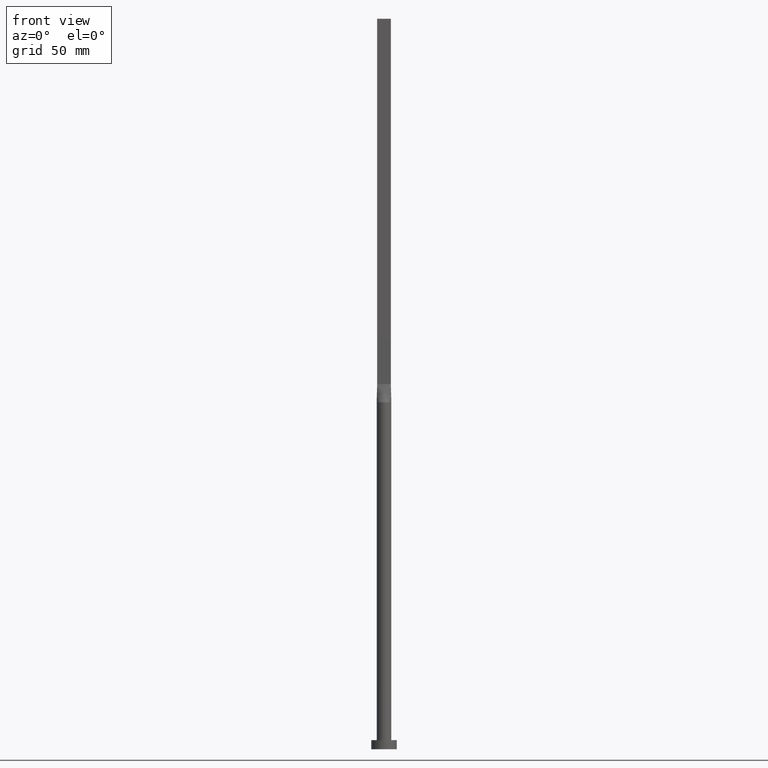
[diagram: clean part render]
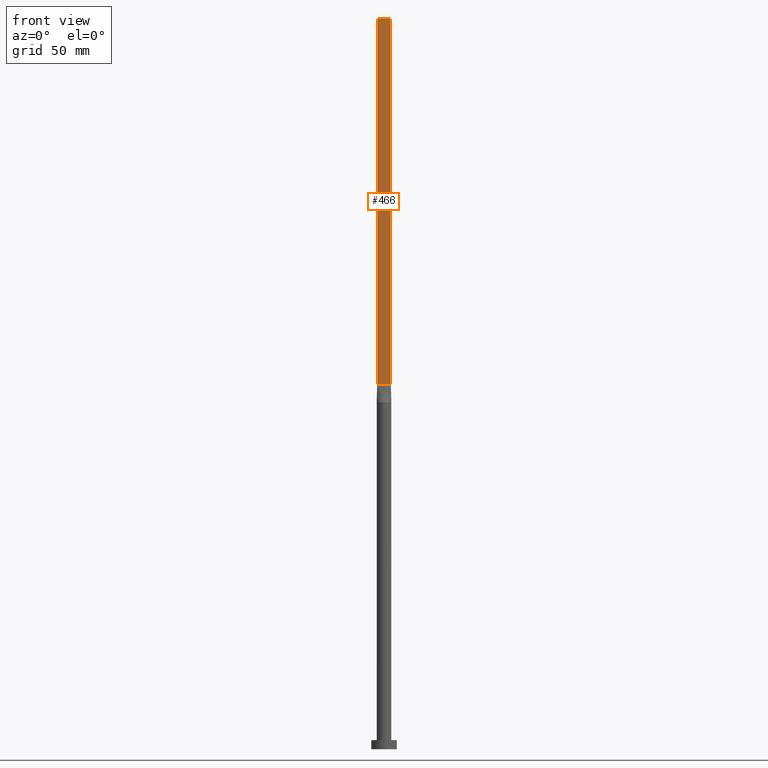
[diagram: same view with one face highlighted and labeled with its STEP entity id]
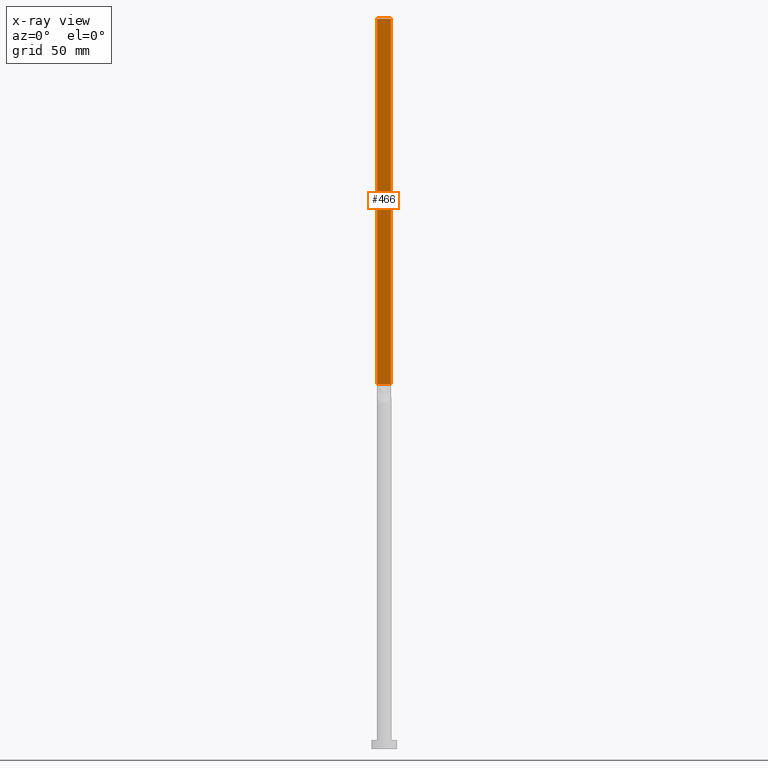
[diagram: x-ray of the same camera — body ghosted, the highlighted face saturated]
A machine part, front view. The second image highlights one B-rep face of the part: STEP entity #466.
The next image is the same camera in x-ray: the body ghosted, the highlighted face saturated — about 0% of this face is hidden behind the body in this view.
In plain terms, the highlighted planar face has unit normal (0, 1, -0).
Its self-contained STEP definition (entity closure, byte-faithful):
#2 = ORIENTED_EDGE ( 'NONE', *, *, #90, .F. ) ;
#74 = LINE ( 'NONE', #517, #511 ) ;
#85 = CARTESIAN_POINT ( 'NONE',  ( -3.750000000000000000, -0.9999999999999991118, 200.0000000000000000 ) ) ;
#90 = EDGE_CURVE ( 'NONE', #425, #197, #155, .T. ) ;
#114 = DIRECTION ( 'NONE',  ( -0.000000000000000000, -0.000000000000000000, -1.000000000000000000 ) ) ;
#117 = VECTOR ( 'NONE', #387, 1000.000000000000000 ) ;
#132 = EDGE_CURVE ( 'NONE', #425, #147, #74, .T. ) ;
#142 = CARTESIAN_POINT ( 'NONE',  ( 3.750000000000000000, -0.9999999999999997780, 400.0000000000000000 ) ) ;
#144 = EDGE_CURVE ( 'NONE', #147, #548, #568, .T. ) ;
#147 = VERTEX_POINT ( 'NONE', #85 ) ;
#155 = LINE ( 'NONE', #512, #371 ) ;
#180 = PLANE ( 'NONE',  #533 ) ;
#188 = ORIENTED_EDGE ( 'NONE', *, *, #144, .T. ) ;
#192 = FACE_OUTER_BOUND ( 'NONE', #241, .T. ) ;
#197 = VERTEX_POINT ( 'NONE', #489 ) ;
#205 = CARTESIAN_POINT ( 'NONE',  ( -3.750000000000000000, -0.9999999999999991118, 200.0000000000000000 ) ) ;
#229 = VECTOR ( 'NONE', #335, 1000.000000000000000 ) ;
#241 = EDGE_LOOP ( 'NONE', ( #188, #556, #2, #446 ) ) ;
#335 = DIRECTION ( 'NONE',  ( -0.000000000000000000, -0.000000000000000000, -1.000000000000000000 ) ) ;
#345 = CARTESIAN_POINT ( 'NONE',  ( 3.750000000000000000, -0.9999999999999997780, 200.0000000000000000 ) ) ;
#368 = CARTESIAN_POINT ( 'NONE',  ( -3.750000000000000000, -0.9999999999999991118, 400.0000000000000000 ) ) ;
#371 = VECTOR ( 'NONE', #470, 1000.000000000000000 ) ;
#373 = LINE ( 'NONE', #142, #229 ) ;
#387 = DIRECTION ( 'NONE',  ( 1.000000000000000000, -8.673617379884035472E-17, 0.000000000000000000 ) ) ;
#405 = DIRECTION ( 'NONE',  ( -1.000000000000000000, 8.673617379884035472E-17, 0.000000000000000000 ) ) ;
#420 = CARTESIAN_POINT ( 'NONE',  ( -3.750000000000000000, -0.9999999999999991118, 400.0000000000000000 ) ) ;
#425 = VERTEX_POINT ( 'NONE', #420 ) ;
#437 = EDGE_CURVE ( 'NONE', #197, #548, #373, .T. ) ;
#446 = ORIENTED_EDGE ( 'NONE', *, *, #132, .T. ) ;
#466 = ADVANCED_FACE ( 'NONE', ( #192 ), #180, .F. ) ;
#470 = DIRECTION ( 'NONE',  ( 1.000000000000000000, -8.673617379884035472E-17, 0.000000000000000000 ) ) ;
#489 = CARTESIAN_POINT ( 'NONE',  ( 3.750000000000000000, -0.9999999999999997780, 400.0000000000000000 ) ) ;
#494 = DIRECTION ( 'NONE',  ( 8.673617379884035472E-17, 1.000000000000000000, -0.000000000000000000 ) ) ;
#511 = VECTOR ( 'NONE', #114, 1000.000000000000000 ) ;
#512 = CARTESIAN_POINT ( 'NONE',  ( -3.750000000000000000, -0.9999999999999991118, 400.0000000000000000 ) ) ;
#517 = CARTESIAN_POINT ( 'NONE',  ( -3.750000000000000000, -0.9999999999999991118, 400.0000000000000000 ) ) ;
#533 = AXIS2_PLACEMENT_3D ( 'NONE', #368, #494, #405 ) ;
#548 = VERTEX_POINT ( 'NONE', #345 ) ;
#556 = ORIENTED_EDGE ( 'NONE', *, *, #437, .F. ) ;
#568 = LINE ( 'NONE', #205, #117 ) ;